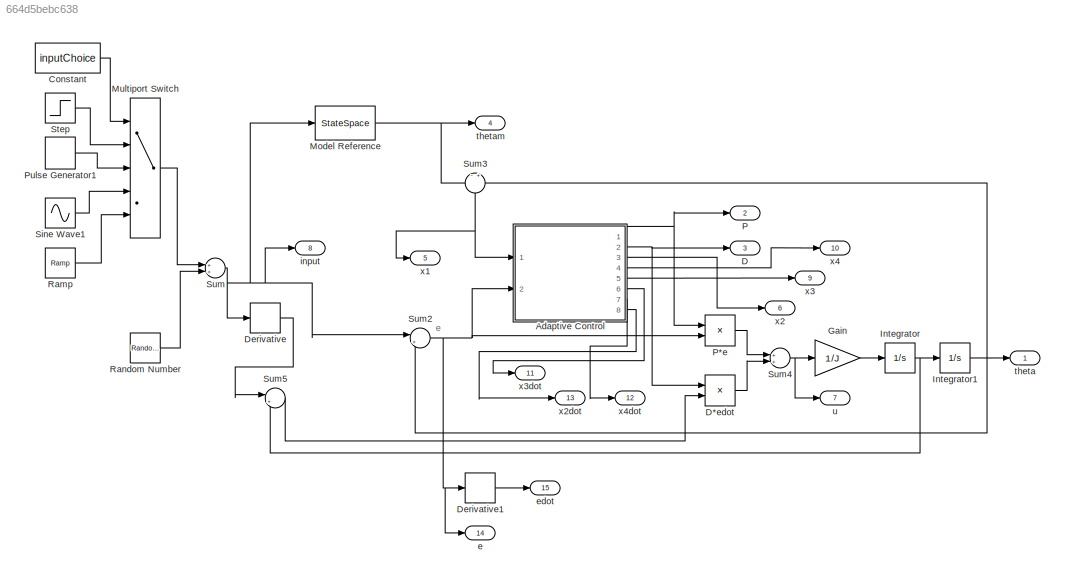
MODEL slx_664d5bebc638
KIND model
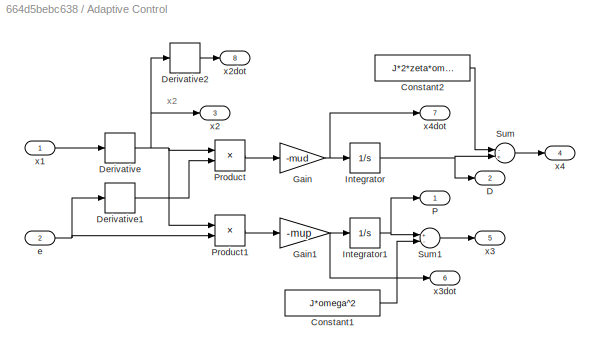
BLOCK [SubSystem] Adaptive Control
  FunctionWithSeparateData = off
  MaskHideContents = off
  MinAlgLoopOccurrences = off
  Opaque = off
  Ports = [2, 8]
  PropExecContextOutsideSubsystem = off
  RTWSystemCode = Auto
  RequestExecContextInheritance = off
  ShowPortLabels = SignalName
BLOCK [Constant] Adaptive Control/Constant1
  Value = J*omega^2
BLOCK [Constant] Adaptive Control/Constant2
  Value = J*2*zeta*omega
BLOCK [Outport] Adaptive Control/D
  IconDisplay = Port number
  Port = 2
BLOCK [Derivative] Adaptive Control/Derivative
BLOCK [Derivative] Adaptive Control/Derivative1
BLOCK [Derivative] Adaptive Control/Derivative2
BLOCK [Gain] Adaptive Control/Gain
  Gain = -mud
  OutDataTypeStr = Inherit: Inherit via internal rule
  ParamDataTypeStr = Inherit: Inherit via internal rule
  SaturateOnIntegerOverflow = off
BLOCK [Gain] Adaptive Control/Gain1
  Gain = -mup
  OutDataTypeStr = Inherit: Inherit via internal rule
  ParamDataTypeStr = Inherit: Inherit via internal rule
  SaturateOnIntegerOverflow = off
BLOCK [Integrator] Adaptive Control/Integrator
  InitialCondition = Jhat*2*zeta*omega
  Ports = [1, 1]
BLOCK [Integrator] Adaptive Control/Integrator1
  InitialCondition = Jhat*omega^2
  Ports = [1, 1]
BLOCK [Outport] Adaptive Control/P
  IconDisplay = Port number
BLOCK [Product] Adaptive Control/Product
  InputSameDT = off
  OutDataTypeStr = Inherit: Inherit via internal rule
  Ports = [2, 1]
  RndMeth = Floor
  SaturateOnIntegerOverflow = off
BLOCK [Product] Adaptive Control/Product1
  InputSameDT = off
  OutDataTypeStr = Inherit: Inherit via internal rule
  Ports = [2, 1]
  RndMeth = Floor
  SaturateOnIntegerOverflow = off
BLOCK [Sum] Adaptive Control/Sum
  InputSameDT = off
  Inputs = -+
  OutDataTypeStr = Inherit: Inherit via internal rule
  Ports = [2, 1]
  SaturateOnIntegerOverflow = off
BLOCK [Sum] Adaptive Control/Sum1
  InputSameDT = off
  Inputs = +-
  OutDataTypeStr = Inherit: Inherit via internal rule
  Ports = [2, 1]
  SaturateOnIntegerOverflow = off
BLOCK [Inport] Adaptive Control/e
  IconDisplay = Port number
  Port = 2
BLOCK [Inport] Adaptive Control/x1
  IconDisplay = Port number
BLOCK [Outport] Adaptive Control/x2
  IconDisplay = Port number
  Port = 3
BLOCK [Outport] Adaptive Control/x2dot
  IconDisplay = Port number
  Port = 8
BLOCK [Outport] Adaptive Control/x3
  IconDisplay = Port number
  Port = 5
BLOCK [Outport] Adaptive Control/x3dot
  IconDisplay = Port number
  Port = 6
BLOCK [Outport] Adaptive Control/x4
  IconDisplay = Port number
  Port = 4
BLOCK [Outport] Adaptive Control/x4dot
  IconDisplay = Port number
  Port = 7
BLOCK [Constant] Constant
  Value = inputChoice
BLOCK [Outport] D
  IconDisplay = Port number
  Port = 3
BLOCK [Product] D*edot
  InputSameDT = off
  OutDataTypeStr = Inherit: Inherit via internal rule
  Ports = [2, 1]
  RndMeth = Floor
  SaturateOnIntegerOverflow = off
BLOCK [Derivative] Derivative
BLOCK [Derivative] Derivative1
BLOCK [Gain] Gain
  Gain = 1/J
  OutDataTypeStr = Inherit: Inherit via internal rule
  ParamDataTypeStr = Inherit: Inherit via internal rule
  SaturateOnIntegerOverflow = off
BLOCK [Integrator] Integrator
  InitialCondition = initialVelocity
  Ports = [1, 1]
BLOCK [Integrator] Integrator1
  InitialCondition = initialAngle
  Ports = [1, 1]
BLOCK [StateSpace] Model Reference
  A = [-20 -100; 1 0]
  B = [100;0]
  C = [0 1]
  D = 0
  X0 = [initialVelocity initialAngle]
BLOCK [MultiPortSwitch] Multiport Switch
  InputSameDT = off
  Inputs = 4
  Ports = [5, 1]
  SaturateOnIntegerOverflow = off
BLOCK [Outport] P
  IconDisplay = Port number
  Port = 2
BLOCK [Product] P*e
  InputSameDT = off
  OutDataTypeStr = Inherit: Inherit via internal rule
  Ports = [2, 1]
  RndMeth = Floor
  SaturateOnIntegerOverflow = off
BLOCK [DiscretePulseGenerator] Pulse Generator1
  Amplitude = Amplitude
  Period = Period
  Ports = [0, 1]
  PulseType = Time based
  PulseWidth = 50
BLOCK [Reference] Ramp  REF=simulink/Sources/Ramp
  Ports = [0, 1]
  SourceBlock = simulink/Sources/Ramp
  SourceType = Ramp
  VectorParams1D = on
  X0 = 0
  slope = Amplitude
  start = 0
BLOCK [RandomNumber] Random Number
  SampleTime = 0.1
  Variance = ditherAmp
BLOCK [Sin] Sine Wave1
  Amplitude = Amplitude
  Frequency = Frequency
  Ports = [0, 1]
  SampleTime = 0
BLOCK [Step] Step
  After = Amplitude
  SampleTime = 0
BLOCK [Sum] Sum
  InputSameDT = off
  OutDataTypeStr = Inherit: Inherit via internal rule
  Ports = [2, 1]
  SaturateOnIntegerOverflow = off
BLOCK [Sum] Sum2
  IconShape = round
  InputSameDT = off
  Inputs = |+-
  OutDataTypeStr = Inherit: Inherit via internal rule
  Ports = [2, 1]
  SaturateOnIntegerOverflow = off
BLOCK [Sum] Sum3
  IconShape = round
  InputSameDT = off
  Inputs = -+
  OutDataTypeStr = Inherit: Inherit via internal rule
  Ports = [2, 1]
  SaturateOnIntegerOverflow = off
BLOCK [Sum] Sum4
  InputSameDT = off
  OutDataTypeStr = Inherit: Inherit via internal rule
  Ports = [2, 1]
  SaturateOnIntegerOverflow = off
BLOCK [Sum] Sum5
  IconShape = round
  InputSameDT = off
  Inputs = |+-
  OutDataTypeStr = Inherit: Inherit via internal rule
  Ports = [2, 1]
  SaturateOnIntegerOverflow = off
BLOCK [Outport] e
  IconDisplay = Port number
  Port = 14
BLOCK [Outport] edot
  IconDisplay = Port number
  Port = 15
BLOCK [Outport] input
  IconDisplay = Port number
  Port = 8
BLOCK [Outport] theta
  IconDisplay = Port number
BLOCK [Outport] thetam
  IconDisplay = Port number
  Port = 4
BLOCK [Outport] u
  IconDisplay = Port number
  Port = 7
BLOCK [Outport] x1
  IconDisplay = Port number
  Port = 5
BLOCK [Outport] x2
  IconDisplay = Port number
  Port = 6
BLOCK [Outport] x2dot
  IconDisplay = Port number
  Port = 13
BLOCK [Outport] x3
  IconDisplay = Port number
  Port = 9
BLOCK [Outport] x3dot
  IconDisplay = Port number
  Port = 11
BLOCK [Outport] x4
  IconDisplay = Port number
  Port = 10
BLOCK [Outport] x4dot
  IconDisplay = Port number
  Port = 12
ANNOTATION (root): e
ANNOTATION Adaptive Control: x2
LINE Adaptive Control/Constant1:1 -> Adaptive Control/Sum1:2
LINE Adaptive Control/Constant2:1 -> Adaptive Control/Sum:1
LINE Adaptive Control/Derivative1:1 -> Adaptive Control/Product:2
LINE Adaptive Control/Derivative2:1 -> Adaptive Control/x2dot:1
NET Adaptive Control/Derivative:1 -> Adaptive Control/Derivative2:1, Adaptive Control/Product1:1, Adaptive Control/Product:1, Adaptive Control/x2:1
NET Adaptive Control/Gain1:1 -> Adaptive Control/Integrator1:1, Adaptive Control/x3dot:1
NET Adaptive Control/Gain:1 -> Adaptive Control/Integrator:1, Adaptive Control/x4dot:1
NET Adaptive Control/Integrator1:1 -> Adaptive Control/P:1, Adaptive Control/Sum1:1
NET Adaptive Control/Integrator:1 -> Adaptive Control/D:1, Adaptive Control/Sum:2
LINE Adaptive Control/Product1:1 -> Adaptive Control/Gain1:1
LINE Adaptive Control/Product:1 -> Adaptive Control/Gain:1
LINE Adaptive Control/Sum1:1 -> Adaptive Control/x3:1
LINE Adaptive Control/Sum:1 -> Adaptive Control/x4:1
NET Adaptive Control/e:1 -> Adaptive Control/Derivative1:1, Adaptive Control/Product1:2
LINE Adaptive Control/x1:1 -> Adaptive Control/Derivative:1
NET Adaptive Control:1 -> P*e:1, P:1
NET Adaptive Control:2 -> D*edot:1, D:1
LINE Adaptive Control:3 -> x2:1
LINE Adaptive Control:4 -> x4:1
LINE Adaptive Control:5 -> x3:1
LINE Adaptive Control:6 -> x3dot:1
LINE Adaptive Control:7 -> x4dot:1
LINE Adaptive Control:8 -> x2dot:1
LINE Constant:1 -> Multiport Switch:1
LINE D*edot:1 -> Sum4:2
LINE Derivative1:1 -> edot:1
LINE Derivative:1 -> Sum5:1
LINE Gain:1 -> Integrator:1
NET Integrator1:1 -> Sum2:2, Sum3:2, theta:1
NET Integrator:1 -> Integrator1:1, Sum5:2
NET Model Reference:1 -> Sum3:1, thetam:1
LINE Multiport Switch:1 -> Sum:1
LINE P*e:1 -> Sum4:1
LINE Pulse Generator1:1 -> Multiport Switch:3
LINE Ramp:1 -> Multiport Switch:5
LINE Random Number:1 -> Sum:2
LINE Sine Wave1:1 -> Multiport Switch:4
LINE Step:1 -> Multiport Switch:2
NET Sum2:1 -> Adaptive Control:2, Derivative1:1, P*e:2, e:1
NET Sum3:1 -> Adaptive Control:1, x1:1
NET Sum4:1 -> Gain:1, u:1
LINE Sum5:1 -> D*edot:2
NET Sum:1 -> Derivative:1, Model Reference:1, Sum2:1, input:1
note: NET lines group one-source signal fan-out (src -> all destinations, sorted); 1:1 wires keep LINE
